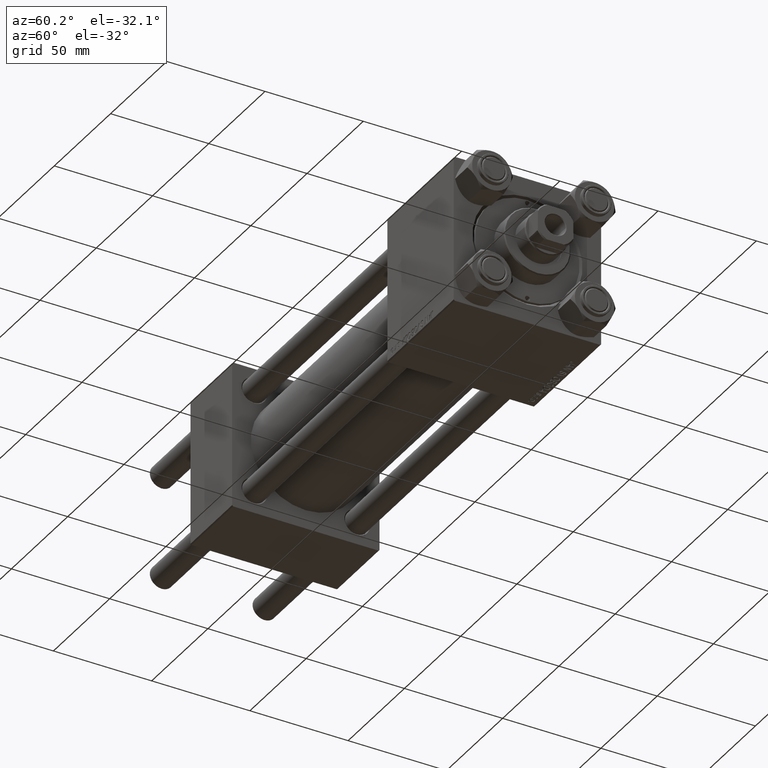
[diagram: clean part render]
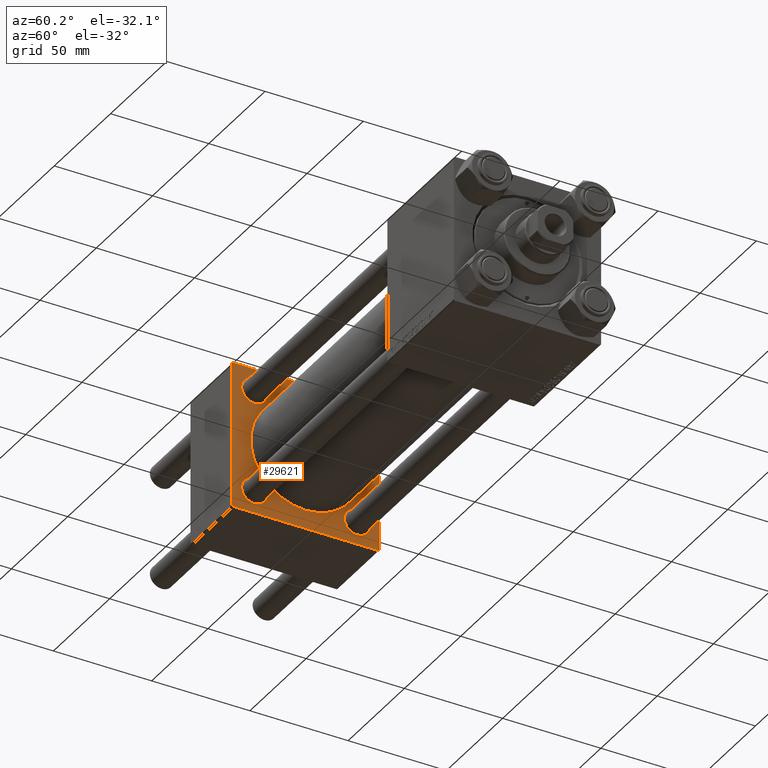
[diagram: same view with one face highlighted and labeled with its STEP entity id]
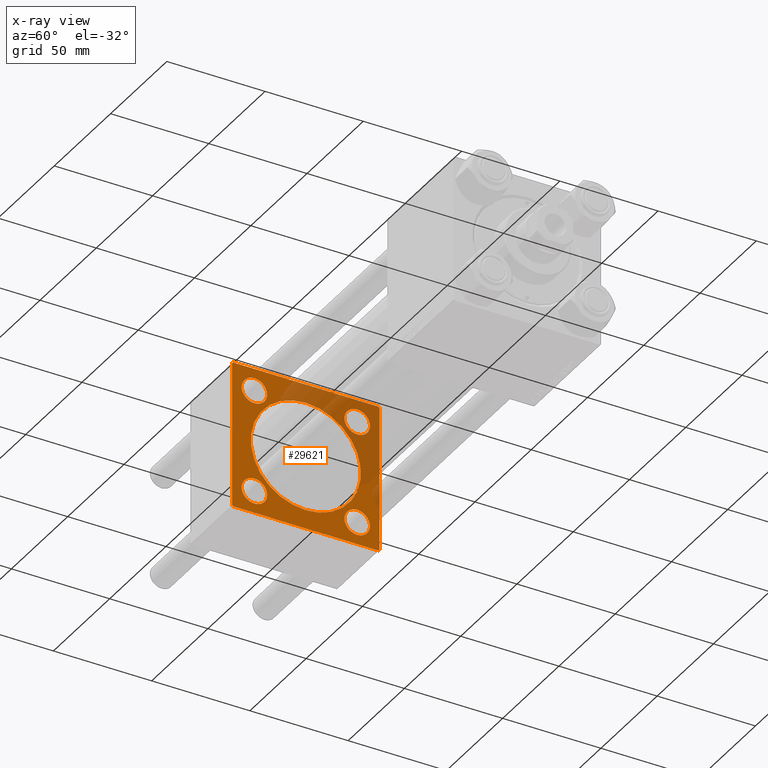
[diagram: x-ray of the same camera — body ghosted, the highlighted face saturated]
A machine part, auxiliary view. The second image highlights one B-rep face of the part: STEP entity #29621.
The next image is the same camera in x-ray: the body ghosted, the highlighted face saturated — about 31% of this face is hidden behind the body in this view.
In plain terms, the highlighted planar face has unit normal (-1, 0, 0).
Its self-contained STEP definition (entity closure, byte-faithful):
#361 = CIRCLE ( 'NONE', #44733, 6.500000000000008882 ) ;
#556 = EDGE_CURVE ( 'NONE', #49552, #6925, #26507, .T. ) ;
#647 = DIRECTION ( 'NONE',  ( 1.000000000000000000, -0.000000000000000000, 0.000000000000000000 ) ) ;
#1433 = VECTOR ( 'NONE', #43892, 1000.000000000000000 ) ;
#1450 = ORIENTED_EDGE ( 'NONE', *, *, #4817, .T. ) ;
#1653 = CIRCLE ( 'NONE', #12968, 6.500000000000008882 ) ;
#1779 = DIRECTION ( 'NONE',  ( -1.000000000000000000, 0.000000000000000000, -0.000000000000000000 ) ) ;
#2384 = DIRECTION ( 'NONE',  ( -1.000000000000000000, 0.000000000000000000, -0.000000000000000000 ) ) ;
#2825 = LINE ( 'NONE', #37902, #16774 ) ;
#3141 = LINE ( 'NONE', #6194, #11169 ) ;
#3724 = CIRCLE ( 'NONE', #10203, 6.499999999999953815 ) ;
#3789 = VERTEX_POINT ( 'NONE', #7138 ) ;
#3880 = CARTESIAN_POINT ( 'NONE',  ( 37.00000000000000000, 37.49999999999999289, 37.00000000000000000 ) ) ;
#3969 = CIRCLE ( 'NONE', #32194, 6.500000000000002665 ) ;
#4070 = DIRECTION ( 'NONE',  ( 0.000000000000000000, 0.000000000000000000, 1.000000000000000000 ) ) ;
#4131 = ORIENTED_EDGE ( 'NONE', *, *, #37602, .T. ) ;
#4545 = CARTESIAN_POINT ( 'NONE',  ( 37.00000000000000000, 26.14999999999999858, -26.15000000000000213 ) ) ;
#4817 = EDGE_CURVE ( 'NONE', #46874, #39677, #361, .T. ) ;
#5506 = CARTESIAN_POINT ( 'NONE',  ( 37.00000000000000000, -37.50000000000000711, 37.49999999999999289 ) ) ;
#5533 = CIRCLE ( 'NONE', #40228, 6.499999999999946709 ) ;
#5927 = CARTESIAN_POINT ( 'NONE',  ( 37.00000000000000000, -37.00000000000002132, -37.50000000000000711 ) ) ;
#6028 = CIRCLE ( 'NONE', #44739, 6.499999999999946709 ) ;
#6194 = CARTESIAN_POINT ( 'NONE',  ( 37.00000000000000000, 37.49999999999999289, -36.99999999999998579 ) ) ;
#6433 = VERTEX_POINT ( 'NONE', #41362 ) ;
#6470 = CARTESIAN_POINT ( 'NONE',  ( 37.00000000000000000, 36.99999999999999289, 37.50000000000000000 ) ) ;
#6494 = CARTESIAN_POINT ( 'NONE',  ( 37.00000000000000000, 26.14999999999999858, 32.65000000000001279 ) ) ;
#6559 = CARTESIAN_POINT ( 'NONE',  ( 37.00000000000000000, 0.000000000000000000, 0.000000000000000000 ) ) ;
#6810 = VECTOR ( 'NONE', #17661, 1000.000000000000000 ) ;
#6925 = VERTEX_POINT ( 'NONE', #8390 ) ;
#7138 = CARTESIAN_POINT ( 'NONE',  ( 37.00000000000000000, -26.14999999999999147, 32.64999999999996305 ) ) ;
#7841 = ORIENTED_EDGE ( 'NONE', *, *, #46950, .T. ) ;
#8390 = CARTESIAN_POINT ( 'NONE',  ( 37.00000000000000000, -37.50000000000000000, -37.00000000000003553 ) ) ;
#8394 = CARTESIAN_POINT ( 'NONE',  ( 37.00000000000000711, 3.429011037612589276E-15, -28.00000000000000000 ) ) ;
#8601 = EDGE_LOOP ( 'NONE', ( #40496, #28649 ) ) ;
#9358 = LINE ( 'NONE', #24778, #21680 ) ;
#9385 = EDGE_CURVE ( 'NONE', #6925, #32295, #29908, .T. ) ;
#9434 = DIRECTION ( 'NONE',  ( 0.000000000000000000, 0.000000000000000000, 1.000000000000000000 ) ) ;
#9459 = CARTESIAN_POINT ( 'NONE',  ( 37.00000000000000000, 37.49999999999999289, -36.99999999999998579 ) ) ;
#9854 = DIRECTION ( 'NONE',  ( -1.000000000000000000, 0.000000000000000000, -0.000000000000000000 ) ) ;
#9966 = CARTESIAN_POINT ( 'NONE',  ( 37.00000000000000000, -26.14999999999999147, -26.15000000000000924 ) ) ;
#10111 = DIRECTION ( 'NONE',  ( -0.000000000000000000, 0.000000000000000000, 1.000000000000000000 ) ) ;
#10203 = AXIS2_PLACEMENT_3D ( 'NONE', #42457, #30349, #4070 ) ;
#10534 = CARTESIAN_POINT ( 'NONE',  ( 37.00000000000000711, 0.000000000000000000, 28.00000000000000000 ) ) ;
#11169 = VECTOR ( 'NONE', #41780, 1000.000000000000114 ) ;
#11529 = ORIENTED_EDGE ( 'NONE', *, *, #556, .T. ) ;
#11964 = DIRECTION ( 'NONE',  ( 0.000000000000000000, 0.000000000000000000, 1.000000000000000000 ) ) ;
#12024 = CARTESIAN_POINT ( 'NONE',  ( 37.00000000000000711, 0.000000000000000000, 0.000000000000000000 ) ) ;
#12180 = CIRCLE ( 'NONE', #37150, 28.00000000000000000 ) ;
#12367 = VERTEX_POINT ( 'NONE', #26681 ) ;
#12488 = VECTOR ( 'NONE', #14768, 1000.000000000000000 ) ;
#12504 = VERTEX_POINT ( 'NONE', #45071 ) ;
#12968 = AXIS2_PLACEMENT_3D ( 'NONE', #40080, #43364, #16620 ) ;
#13098 = EDGE_CURVE ( 'NONE', #42873, #3789, #3724, .T. ) ;
#13173 = ORIENTED_EDGE ( 'NONE', *, *, #48818, .F. ) ;
#13280 = CIRCLE ( 'NONE', #28602, 6.499999999999953815 ) ;
#13410 = DIRECTION ( 'NONE',  ( -0.000000000000000000, -0.7071067811865474617, -0.7071067811865474617 ) ) ;
#13487 = DIRECTION ( 'NONE',  ( 1.000000000000000000, -0.000000000000000000, 0.000000000000000000 ) ) ;
#14572 = LINE ( 'NONE', #6470, #35844 ) ;
#14768 = DIRECTION ( 'NONE',  ( 0.000000000000000000, 0.7071067811865524577, -0.7071067811865426878 ) ) ;
#15050 = VERTEX_POINT ( 'NONE', #23619 ) ;
#15374 = ORIENTED_EDGE ( 'NONE', *, *, #21669, .T. ) ;
#16620 = DIRECTION ( 'NONE',  ( 0.000000000000000000, 0.000000000000000000, 1.000000000000000000 ) ) ;
#16774 = VECTOR ( 'NONE', #18259, 1000.000000000000000 ) ;
#16956 = VERTEX_POINT ( 'NONE', #3880 ) ;
#17642 = CIRCLE ( 'NONE', #20880, 28.00000000000000000 ) ;
#17661 = DIRECTION ( 'NONE',  ( 0.000000000000000000, 0.000000000000000000, -1.000000000000000000 ) ) ;
#17894 = VERTEX_POINT ( 'NONE', #29515 ) ;
#17950 = VERTEX_POINT ( 'NONE', #22926 ) ;
#17971 = EDGE_LOOP ( 'NONE', ( #19289, #41804 ) ) ;
#18019 = ORIENTED_EDGE ( 'NONE', *, *, #31889, .T. ) ;
#18259 = DIRECTION ( 'NONE',  ( 0.000000000000000000, -1.000000000000000000, -9.251858538542971581E-17 ) ) ;
#18416 = EDGE_CURVE ( 'NONE', #45388, #29066, #17642, .T. ) ;
#18656 = CARTESIAN_POINT ( 'NONE',  ( 37.00000000000000000, -26.14999999999999147, 19.65000000000005542 ) ) ;
#19289 = ORIENTED_EDGE ( 'NONE', *, *, #20347, .T. ) ;
#19310 = EDGE_CURVE ( 'NONE', #12367, #48019, #3141, .T. ) ;
#19969 = DIRECTION ( 'NONE',  ( -1.000000000000000000, 0.000000000000000000, -0.000000000000000000 ) ) ;
#20347 = EDGE_CURVE ( 'NONE', #26068, #6433, #5533, .T. ) ;
#20880 = AXIS2_PLACEMENT_3D ( 'NONE', #12024, #647, #23145 ) ;
#21669 = EDGE_CURVE ( 'NONE', #17950, #15050, #2825, .T. ) ;
#21680 = VECTOR ( 'NONE', #13410, 1000.000000000000114 ) ;
#21922 = CIRCLE ( 'NONE', #49292, 6.500000000000002665 ) ;
#22635 = EDGE_CURVE ( 'NONE', #15050, #49552, #9358, .T. ) ;
#22926 = CARTESIAN_POINT ( 'NONE',  ( 37.00000000000000000, 36.99999999999999289, 37.50000000000000000 ) ) ;
#23145 = DIRECTION ( 'NONE',  ( 0.000000000000000000, 0.000000000000000000, 1.000000000000000000 ) ) ;
#23188 = CARTESIAN_POINT ( 'NONE',  ( 37.00000000000000000, 37.49999999999999289, -37.50000000000000000 ) ) ;
#23619 = CARTESIAN_POINT ( 'NONE',  ( 37.00000000000000000, -37.00000000000000711, 37.49999999999999289 ) ) ;
#24682 = ORIENTED_EDGE ( 'NONE', *, *, #48485, .T. ) ;
#24778 = CARTESIAN_POINT ( 'NONE',  ( 37.00000000000000000, -37.50000000000000711, 36.99999999999999289 ) ) ;
#25285 = CARTESIAN_POINT ( 'NONE',  ( 37.00000000000000000, -26.14999999999999147, 26.15000000000000924 ) ) ;
#25525 = EDGE_LOOP ( 'NONE', ( #43048, #36190, #13173, #7841, #15374, #25709, #11529, #30342 ) ) ;
#25528 = FACE_BOUND ( 'NONE', #17971, .T. ) ;
#25709 = ORIENTED_EDGE ( 'NONE', *, *, #22635, .T. ) ;
#26068 = VERTEX_POINT ( 'NONE', #35223 ) ;
#26267 = FACE_BOUND ( 'NONE', #8601, .T. ) ;
#26507 = LINE ( 'NONE', #5506, #1433 ) ;
#26681 = CARTESIAN_POINT ( 'NONE',  ( 37.00000000000000000, 36.99999999999997868, -37.50000000000000000 ) ) ;
#28602 = AXIS2_PLACEMENT_3D ( 'NONE', #25285, #1779, #36887 ) ;
#28649 = ORIENTED_EDGE ( 'NONE', *, *, #18416, .F. ) ;
#29066 = VERTEX_POINT ( 'NONE', #10534 ) ;
#29515 = CARTESIAN_POINT ( 'NONE',  ( 37.00000000000000000, 26.14999999999999858, -19.65000000000000213 ) ) ;
#29621 = ADVANCED_FACE ( 'NONE', ( #25528, #30040, #33830, #33098, #26267, #45433 ), #41170, .F. ) ;
#29884 = CARTESIAN_POINT ( 'NONE',  ( 37.00000000000000000, -26.14999999999999147, -26.15000000000000924 ) ) ;
#29908 = LINE ( 'NONE', #49307, #12488 ) ;
#30040 = FACE_BOUND ( 'NONE', #43216, .T. ) ;
#30342 = ORIENTED_EDGE ( 'NONE', *, *, #9385, .T. ) ;
#30349 = DIRECTION ( 'NONE',  ( -1.000000000000000000, 0.000000000000000000, -0.000000000000000000 ) ) ;
#31889 = EDGE_CURVE ( 'NONE', #12504, #17894, #3969, .T. ) ;
#32194 = AXIS2_PLACEMENT_3D ( 'NONE', #45490, #45246, #34370 ) ;
#32295 = VERTEX_POINT ( 'NONE', #5927 ) ;
#33098 = FACE_BOUND ( 'NONE', #41236, .T. ) ;
#33426 = CARTESIAN_POINT ( 'NONE',  ( 37.00000000000000711, 0.000000000000000000, 0.000000000000000000 ) ) ;
#33507 = CARTESIAN_POINT ( 'NONE',  ( 37.00000000000000000, 26.14999999999999858, 19.64999999999999858 ) ) ;
#33830 = FACE_BOUND ( 'NONE', #45496, .T. ) ;
#33940 = AXIS2_PLACEMENT_3D ( 'NONE', #6559, #9854, #10111 ) ;
#34178 = DIRECTION ( 'NONE',  ( -1.000000000000000000, 0.000000000000000000, -0.000000000000000000 ) ) ;
#34370 = DIRECTION ( 'NONE',  ( 0.000000000000000000, 0.000000000000000000, 1.000000000000000000 ) ) ;
#34700 = EDGE_CURVE ( 'NONE', #29066, #45388, #12180, .T. ) ;
#35184 = CARTESIAN_POINT ( 'NONE',  ( 37.00000000000000000, 26.14999999999999858, 26.15000000000000213 ) ) ;
#35223 = CARTESIAN_POINT ( 'NONE',  ( 37.00000000000000000, -26.14999999999999147, -32.64999999999995595 ) ) ;
#35844 = VECTOR ( 'NONE', #45588, 1000.000000000000114 ) ;
#36190 = ORIENTED_EDGE ( 'NONE', *, *, #19310, .T. ) ;
#36518 = VECTOR ( 'NONE', #38573, 1000.000000000000000 ) ;
#36887 = DIRECTION ( 'NONE',  ( 0.000000000000000000, 0.000000000000000000, 1.000000000000000000 ) ) ;
#37150 = AXIS2_PLACEMENT_3D ( 'NONE', #33426, #13487, #9434 ) ;
#37323 = EDGE_CURVE ( 'NONE', #17894, #12504, #21922, .T. ) ;
#37602 = EDGE_CURVE ( 'NONE', #39677, #46874, #1653, .T. ) ;
#37902 = CARTESIAN_POINT ( 'NONE',  ( 37.00000000000000000, 37.49999999999999289, 37.50000000000000000 ) ) ;
#37993 = CARTESIAN_POINT ( 'NONE',  ( 37.00000000000000000, 37.49999999999999289, 37.50000000000000000 ) ) ;
#38573 = DIRECTION ( 'NONE',  ( 0.000000000000000000, -1.000000000000000000, -9.251858538542972814E-17 ) ) ;
#39677 = VERTEX_POINT ( 'NONE', #6494 ) ;
#40080 = CARTESIAN_POINT ( 'NONE',  ( 37.00000000000000000, 26.14999999999999858, 26.15000000000000213 ) ) ;
#40228 = AXIS2_PLACEMENT_3D ( 'NONE', #29884, #48809, #41252 ) ;
#40496 = ORIENTED_EDGE ( 'NONE', *, *, #34700, .F. ) ;
#41170 = PLANE ( 'NONE',  #33940 ) ;
#41236 = EDGE_LOOP ( 'NONE', ( #1450, #4131 ) ) ;
#41252 = DIRECTION ( 'NONE',  ( 0.000000000000000000, 0.000000000000000000, 1.000000000000000000 ) ) ;
#41362 = CARTESIAN_POINT ( 'NONE',  ( 37.00000000000000000, -26.14999999999999147, -19.65000000000006253 ) ) ;
#41483 = ORIENTED_EDGE ( 'NONE', *, *, #37323, .T. ) ;
#41780 = DIRECTION ( 'NONE',  ( -0.000000000000000000, 0.7071067811865474617, 0.7071067811865474617 ) ) ;
#41804 = ORIENTED_EDGE ( 'NONE', *, *, #48062, .T. ) ;
#42359 = LINE ( 'NONE', #23188, #36518 ) ;
#42457 = CARTESIAN_POINT ( 'NONE',  ( 37.00000000000000000, -26.14999999999999147, 26.15000000000000924 ) ) ;
#42873 = VERTEX_POINT ( 'NONE', #18656 ) ;
#43048 = ORIENTED_EDGE ( 'NONE', *, *, #43757, .F. ) ;
#43216 = EDGE_LOOP ( 'NONE', ( #18019, #41483 ) ) ;
#43364 = DIRECTION ( 'NONE',  ( -1.000000000000000000, 0.000000000000000000, -0.000000000000000000 ) ) ;
#43427 = DIRECTION ( 'NONE',  ( 0.000000000000000000, 0.000000000000000000, 1.000000000000000000 ) ) ;
#43757 = EDGE_CURVE ( 'NONE', #12367, #32295, #42359, .T. ) ;
#43892 = DIRECTION ( 'NONE',  ( 0.000000000000000000, 9.251858538542971581E-17, -1.000000000000000000 ) ) ;
#44653 = LINE ( 'NONE', #37993, #6810 ) ;
#44733 = AXIS2_PLACEMENT_3D ( 'NONE', #35184, #34178, #11964 ) ;
#44739 = AXIS2_PLACEMENT_3D ( 'NONE', #9966, #2384, #45307 ) ;
#45071 = CARTESIAN_POINT ( 'NONE',  ( 37.00000000000000000, 26.14999999999999858, -32.65000000000000568 ) ) ;
#45157 = CARTESIAN_POINT ( 'NONE',  ( 37.00000000000000000, -37.50000000000000711, 36.99999999999999289 ) ) ;
#45246 = DIRECTION ( 'NONE',  ( -1.000000000000000000, 0.000000000000000000, -0.000000000000000000 ) ) ;
#45307 = DIRECTION ( 'NONE',  ( 0.000000000000000000, 0.000000000000000000, 1.000000000000000000 ) ) ;
#45388 = VERTEX_POINT ( 'NONE', #8394 ) ;
#45433 = FACE_OUTER_BOUND ( 'NONE', #25525, .T. ) ;
#45490 = CARTESIAN_POINT ( 'NONE',  ( 37.00000000000000000, 26.14999999999999858, -26.15000000000000213 ) ) ;
#45496 = EDGE_LOOP ( 'NONE', ( #45656, #24682 ) ) ;
#45588 = DIRECTION ( 'NONE',  ( 0.000000000000000000, -0.7071067811865474617, 0.7071067811865474617 ) ) ;
#45656 = ORIENTED_EDGE ( 'NONE', *, *, #13098, .T. ) ;
#46874 = VERTEX_POINT ( 'NONE', #33507 ) ;
#46950 = EDGE_CURVE ( 'NONE', #16956, #17950, #14572, .T. ) ;
#48019 = VERTEX_POINT ( 'NONE', #9459 ) ;
#48062 = EDGE_CURVE ( 'NONE', #6433, #26068, #6028, .T. ) ;
#48485 = EDGE_CURVE ( 'NONE', #3789, #42873, #13280, .T. ) ;
#48809 = DIRECTION ( 'NONE',  ( -1.000000000000000000, 0.000000000000000000, -0.000000000000000000 ) ) ;
#48818 = EDGE_CURVE ( 'NONE', #16956, #48019, #44653, .T. ) ;
#49292 = AXIS2_PLACEMENT_3D ( 'NONE', #4545, #19969, #43427 ) ;
#49307 = CARTESIAN_POINT ( 'NONE',  ( 37.00000000000000000, -37.00000000000002132, -37.50000000000000711 ) ) ;
#49552 = VERTEX_POINT ( 'NONE', #45157 ) ;